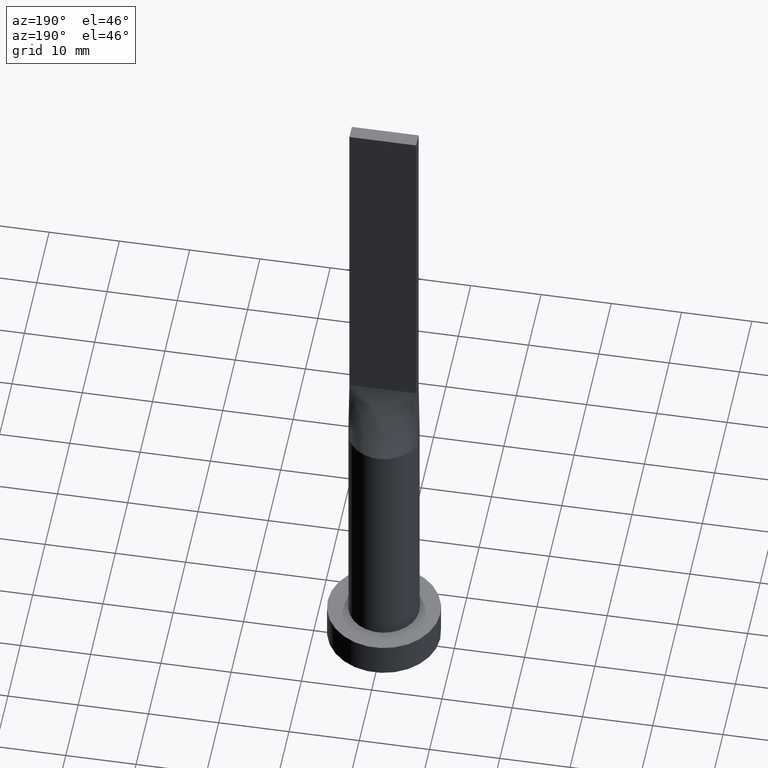
[diagram: clean part render]
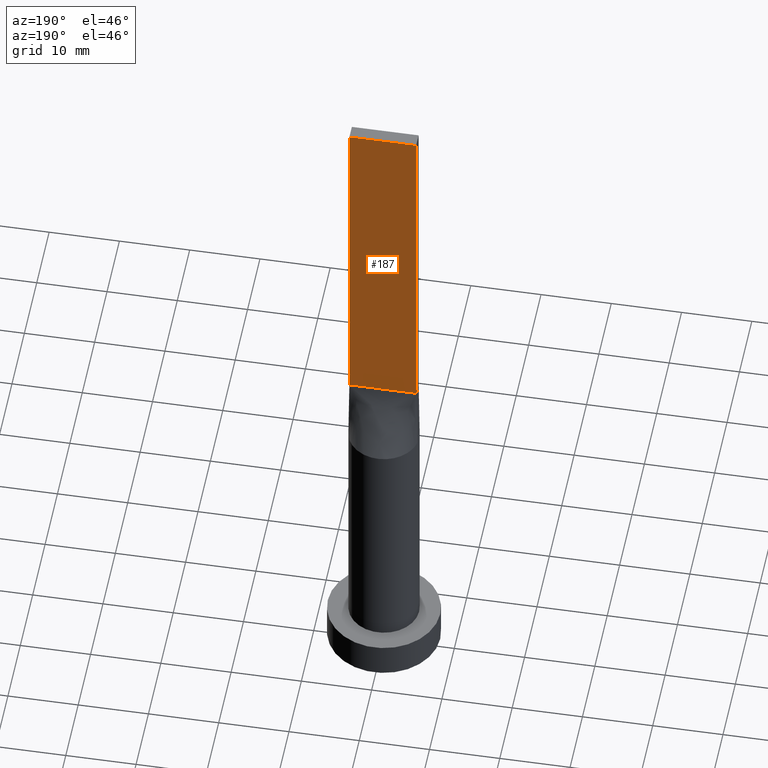
[diagram: same view with one face highlighted and labeled with its STEP entity id]
A machine part, auxiliary view. The second image highlights one B-rep face of the part: STEP entity #187.
In plain terms, the highlighted planar face has unit normal (0, -1, 0).
Its self-contained STEP definition (entity closure, byte-faithful):
#20 = CARTESIAN_POINT ( 'NONE',  ( -4.750000000000000000, 1.000000000000000000, 50.00000000000000000 ) ) ;
#24 = VECTOR ( 'NONE', #83, 1000.000000000000000 ) ;
#54 = ORIENTED_EDGE ( 'NONE', *, *, #82, .F. ) ;
#65 = EDGE_CURVE ( 'NONE', #201, #563, #455, .T. ) ;
#68 = VERTEX_POINT ( 'NONE', #457 ) ;
#82 = EDGE_CURVE ( 'NONE', #68, #196, #411, .T. ) ;
#83 = DIRECTION ( 'NONE',  ( -1.000000000000000000, -0.000000000000000000, -0.000000000000000000 ) ) ;
#127 = PLANE ( 'NONE',  #348 ) ;
#152 = CARTESIAN_POINT ( 'NONE',  ( -4.750000000000000000, 1.000000000000000000, 100.0000000000000000 ) ) ;
#159 = LINE ( 'NONE', #152, #266 ) ;
#178 = FACE_OUTER_BOUND ( 'NONE', #392, .T. ) ;
#187 = ADVANCED_FACE ( 'NONE', ( #178 ), #127, .F. ) ;
#196 = VERTEX_POINT ( 'NONE', #597 ) ;
#200 = LINE ( 'NONE', #300, #477 ) ;
#201 = VERTEX_POINT ( 'NONE', #549 ) ;
#220 = CARTESIAN_POINT ( 'NONE',  ( -4.750000000000000000, 1.000000000000000000, 50.00000000000000000 ) ) ;
#235 = DIRECTION ( 'NONE',  ( -0.000000000000000000, -0.000000000000000000, -1.000000000000000000 ) ) ;
#266 = VECTOR ( 'NONE', #431, 1000.000000000000000 ) ;
#268 = CARTESIAN_POINT ( 'NONE',  ( 4.750000000000000000, 1.000000000000000000, 100.0000000000000000 ) ) ;
#285 = DIRECTION ( 'NONE',  ( -1.000000000000000000, 0.000000000000000000, 0.000000000000000000 ) ) ;
#300 = CARTESIAN_POINT ( 'NONE',  ( 4.750000000000000000, 1.000000000000000000, 100.0000000000000000 ) ) ;
#317 = DIRECTION ( 'NONE',  ( 0.000000000000000000, -0.000000000000000000, -1.000000000000000000 ) ) ;
#348 = AXIS2_PLACEMENT_3D ( 'NONE', #268, #407, #317 ) ;
#349 = ORIENTED_EDGE ( 'NONE', *, *, #529, .F. ) ;
#355 = VECTOR ( 'NONE', #285, 1000.000000000000000 ) ;
#362 = CARTESIAN_POINT ( 'NONE',  ( 4.750000000000000000, 1.000000000000000000, 100.0000000000000000 ) ) ;
#392 = EDGE_LOOP ( 'NONE', ( #556, #349, #54, #545 ) ) ;
#407 = DIRECTION ( 'NONE',  ( 0.000000000000000000, -1.000000000000000000, 0.000000000000000000 ) ) ;
#411 = LINE ( 'NONE', #362, #355 ) ;
#431 = DIRECTION ( 'NONE',  ( -0.000000000000000000, -0.000000000000000000, -1.000000000000000000 ) ) ;
#455 = LINE ( 'NONE', #220, #24 ) ;
#457 = CARTESIAN_POINT ( 'NONE',  ( 4.750000000000000000, 1.000000000000000000, 100.0000000000000000 ) ) ;
#463 = EDGE_CURVE ( 'NONE', #68, #201, #200, .T. ) ;
#477 = VECTOR ( 'NONE', #235, 1000.000000000000000 ) ;
#529 = EDGE_CURVE ( 'NONE', #196, #563, #159, .T. ) ;
#545 = ORIENTED_EDGE ( 'NONE', *, *, #463, .T. ) ;
#549 = CARTESIAN_POINT ( 'NONE',  ( 4.750000000000000000, 1.000000000000000000, 50.00000000000000000 ) ) ;
#556 = ORIENTED_EDGE ( 'NONE', *, *, #65, .T. ) ;
#563 = VERTEX_POINT ( 'NONE', #20 ) ;
#597 = CARTESIAN_POINT ( 'NONE',  ( -4.750000000000000000, 1.000000000000000000, 100.0000000000000000 ) ) ;